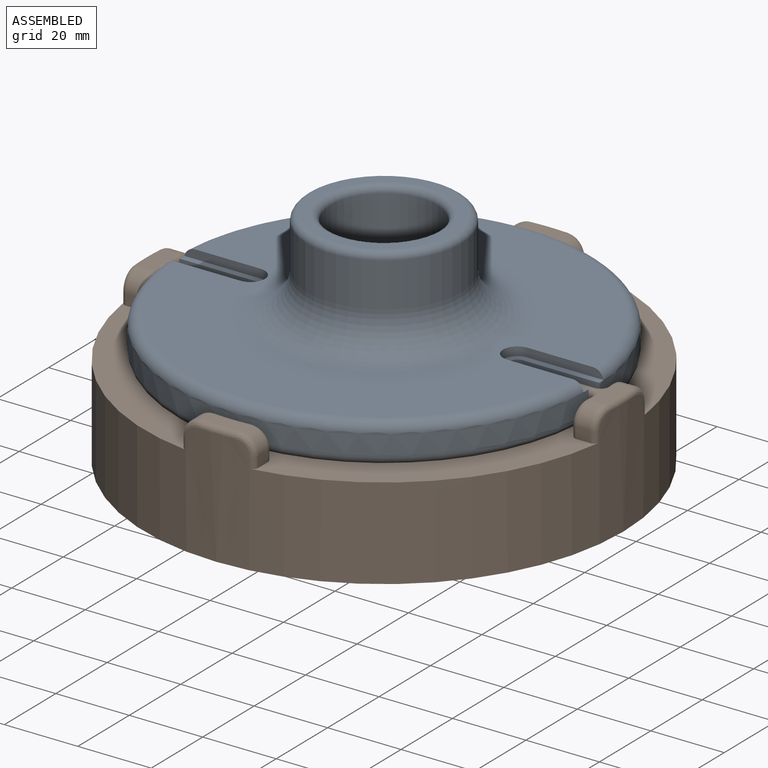
[diagram: assembled view]
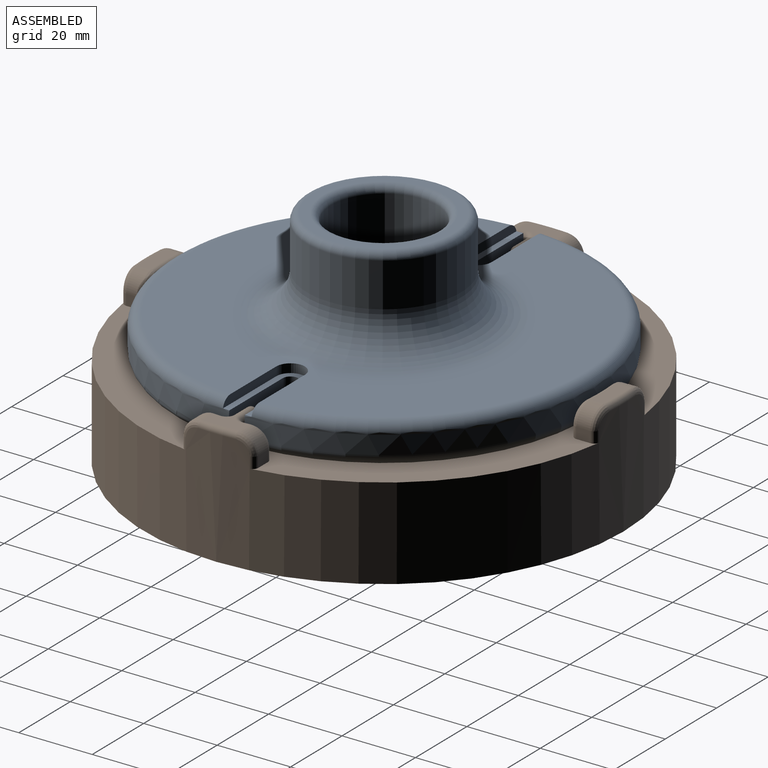
[diagram: assembled view, second angle]
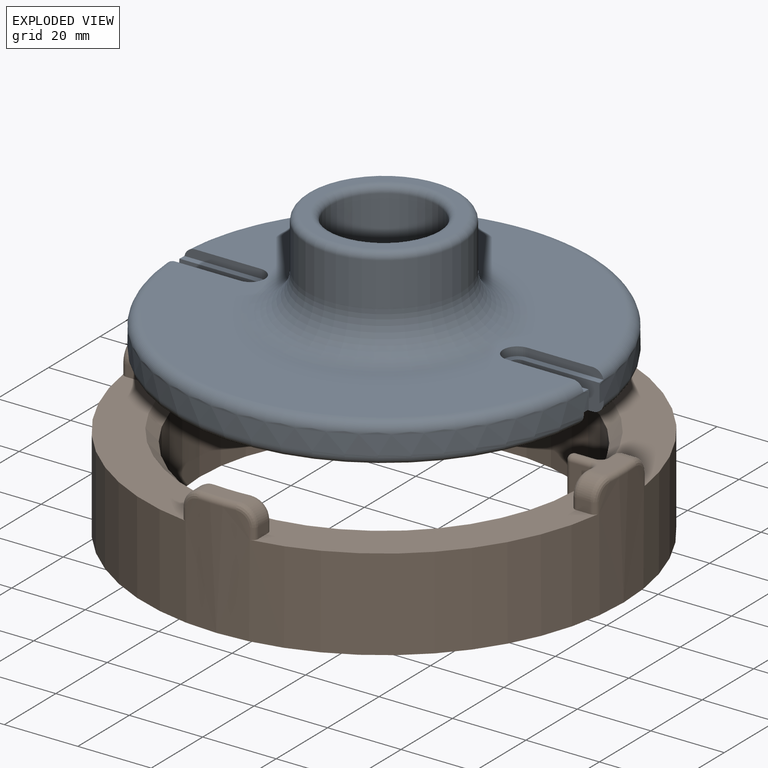
[diagram: exploded view]
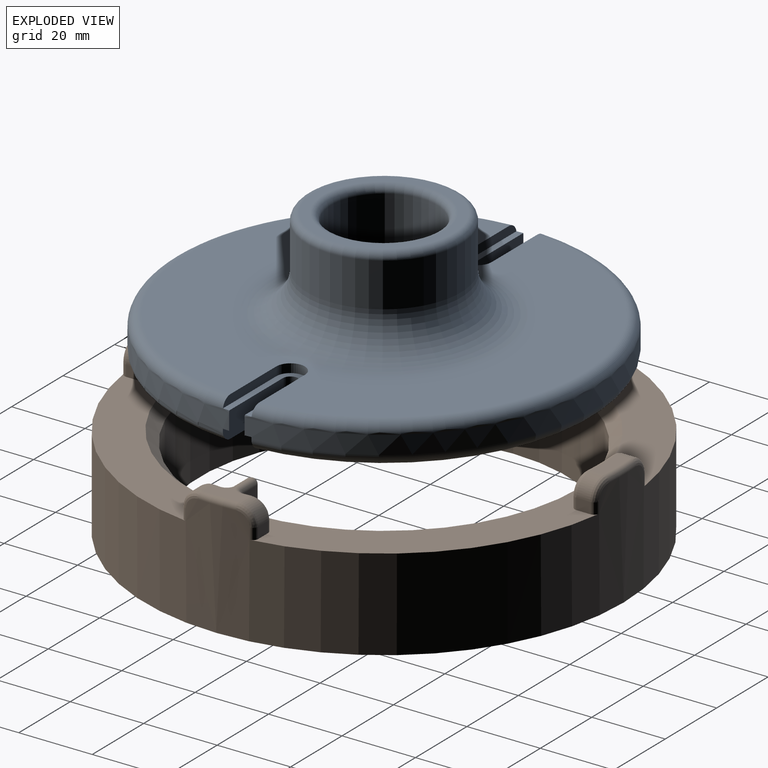
[diagram: exploded view, second angle]
ASSEMBLY  parts=2 mates=2
PART A: 42 faces, bbox 123.9x124x36.1 mm
  f0: cylinder r=44mm len=87.65mm, axis (0,0,-1), area 130.4mm2, adj f1,f11,f24,f36
  f1: plane 108.22x50.36mm, normal (0,0,-1), area 1502mm2, adj f0,f11,f22,f36
  f2: torus R=54.25mm, axis (0,0,1), area 794.4mm2, adj f10,f21,f25,f35
  f3: torus R=54.25mm, axis (0,0,-1), area 796.7mm2, adj f4,f7,f8,f15,f16,f18,f39,f41
  f4: cylinder r=57.25mm len=114.42mm, axis (0,0,1), area 876.1mm2, adj f3,f11,f12,f15,f18,f22,f36,f37
  f5: plane 20.77x2.47mm, normal (0,1,0), area 47.9mm2, adj f6,f8,f16,f17
  f6: cylinder r=3.89mm len=7.79mm, axis (0,0,-1), area 29.5mm2, adj f5,f7,f8,f16
  f7: plane 20.71x2.47mm, normal (0,-1,0), area 47.8mm2, adj f3,f6,f8,f16
  f8: plane 24.7x7.79mm, normal (0,0,1), area 91.4mm2, adj f3,f5,f6,f7,f13,f14,f15,f17
  f9: plane 19.91x1.79mm, normal (0,0,-1), area 35.5mm2, adj f10,f13,f21,f24
  f10: plane 19.92x3.7mm, normal (0,1,0), area 54.4mm2, adj f2,f9,f21,f23,f24,f25
  f11: plane 19.92x3.7mm, normal (0,-1,0), area 54.4mm2, adj f0,f1,f4,f12,f22,f24
  f12: plane 19.91x1.79mm, normal (0,0,-1), area 35.5mm2, adj f4,f11,f15,f24
  f13: plane 20.87x5mm, normal (0,1,0), area 104.1mm2, adj f8,f9,f14,f17,f21,f24
  f14: cylinder r=2.1mm len=4.56mm, axis (0,0,-1), area 26.5mm2, adj f8,f13,f15,f24
  f15: plane 20.87x5mm, normal (0,-1,0), area 104.1mm2, adj f3,f4,f8,f12,f14,f24
  f16: plane 108.5x108.22mm, normal (0,0,1), area 5703.2mm2, adj f3,f5,f6,f7,f17,f30,f38,f39
  f17: torus R=54.25mm, axis (0,0,-1), area 796.7mm2, adj f5,f8,f13,f16,f20,f21,f40,f41
  f18: plane 20.87x5mm, normal (0,-1,0), area 104.1mm2, adj f3,f4,f19,f24,f37,f41
  f19: cylinder r=2.1mm len=4.56mm, axis (0,0,-1), area 26.5mm2, adj f18,f20,f24,f41
  f20: plane 20.87x5mm, normal (0,1,0), area 104.1mm2, adj f17,f19,f21,f24,f34,f41
  f21: cylinder r=57.25mm len=114.42mm, axis (0,0,1), area 876.1mm2, adj f2,f9,f10,f13,f17,f20,f34,f35
  f22: torus R=54.25mm, axis (0,0,1), area 794.4mm2, adj f1,f4,f11,f36
  f23: cylinder r=44mm len=87.65mm, axis (0,0,-1), area 130.4mm2, adj f10,f24,f25,f35
  f24: cone r=34mm half-angle=68.2deg, axis (0,0,-1), area 2504.4mm2, adj f0,f9,f10,f11,f12,f13,f14,f15
  f25: plane 108.22x50.36mm, normal (0,0,-1), area 1502mm2, adj f2,f10,f23,f35
  f26: cylinder r=21mm len=42mm, axis (0,0,1), area 1583.4mm2, adj f30,f31
  f27: plane 38x38mm, normal (0,0,1), area 278.8mm2, adj f31,f32
  f28: cylinder r=14.5mm len=29mm, axis (0,0,1), area 2095.4mm2, adj f29,f32
  f29: plane 29x29mm, normal (0,0,1), area 660.5mm2, adj f28
  f30: torus R=32mm, axis (0,0,-1), area 2713.8mm2, adj f16,f26
  f31: torus R=19mm, axis (0,0,-1), area 400.2mm2, adj f26,f27
  f32: torus R=16.5mm, axis (0,0,-1), area 300.6mm2, adj f27,f28
  f33: plane 68x68mm, normal (0,0,-1), area 3631.7mm2, adj f24
  f34: plane 19.91x1.79mm, normal (0,0,-1), area 35.5mm2, adj f20,f21,f24,f35
  f35: plane 19.92x3.7mm, normal (0,1,0), area 54.4mm2, adj f2,f21,f23,f24,f25,f34
  f36: plane 19.92x3.7mm, normal (0,-1,0), area 54.4mm2, adj f0,f1,f4,f22,f24,f37
  f37: plane 19.91x1.79mm, normal (0,0,-1), area 35.5mm2, adj f4,f18,f24,f36
  f38: cylinder r=3.89mm len=7.79mm, axis (0,0,-1), area 29.5mm2, adj f16,f39,f40,f41
  f39: plane 20.77x2.47mm, normal (0,-1,0), area 47.9mm2, adj f3,f16,f38,f41
  f40: plane 20.71x2.47mm, normal (0,1,0), area 47.8mm2, adj f16,f17,f38,f41
  f41: plane 24.7x7.79mm, normal (0,0,1), area 91.4mm2, adj f3,f17,f18,f19,f20,f38,f39,f40
PART B: 93 faces, bbox 130.9x130.9x33 mm
  f0: plane 129.33x63.17mm, normal (0,0,1), area 1949.8mm2, adj f3,f5,f9,f11,f12,f13,f15,f16
  f1: cylinder r=58.5mm len=6.5mm, axis (0,0,-1), area 31.4mm2, adj f2,f27,f51,f52,f53
  f2: plane 129.33x63.17mm, normal (0,0,1), area 1949.8mm2, adj f1,f5,f7,f8,f17,f19,f20,f21
  f3: cylinder r=58.5mm len=6.5mm, axis (0,0,-1), area 31.4mm2, adj f0,f30,f48,f49,f50
  f4: cylinder r=50.25mm len=100.5mm, axis (0,0,1), area 6946.1mm2, adj f6,f91,f92
  f5: cylinder r=65.25mm len=130.5mm, axis (0,0,1), area 10681.5mm2, adj f0,f2,f6,f61,f62,f63,f64,f65
  f6: plane 130.5x130.5mm, normal (0,0,-1), area 5442.8mm2, adj f4,f5
  f7: cylinder r=58.5mm len=6.5mm, axis (0,0,-1), area 31.4mm2, adj f2,f31,f41,f42,f43
  f8: plane 3.79x3mm, normal (0,-1,0), area 11.4mm2, adj f2,f39,f41,f80
  f9: plane 3.79x3mm, normal (0,1,0), area 11.4mm2, adj f0,f40,f50,f76
  f10: plane 10x6.83mm, normal (0,0,1), area 41.7mm2, adj f39,f40,f43,f44,f47,f48,f78
  f11: cylinder r=58.5mm len=16.58mm, axis (0,0,-1), area 102.9mm2, adj f0,f66,f67,f68,f69,f70
  f12: plane 3.79x3mm, normal (1,0,0), area 11.4mm2, adj f0,f37,f70,f75
  f13: plane 3.79x3mm, normal (-1,0,0), area 11.4mm2, adj f0,f38,f66,f71
  f14: plane 10x3.96mm, normal (0,0,1), area 37.5mm2, adj f37,f38,f68,f73
  f15: cylinder r=58.5mm len=6.5mm, axis (0,0,-1), area 31.4mm2, adj f0,f28,f58,f59,f60
  f16: plane 3.79x3mm, normal (0,1,0), area 11.4mm2, adj f0,f35,f60,f65
  f17: plane 3.79x3mm, normal (0,-1,0), area 11.4mm2, adj f2,f36,f51,f61
  f18: plane 10x6.83mm, normal (0,0,1), area 41.7mm2, adj f35,f36,f53,f54,f57,f58,f63
  f19: cylinder r=58.5mm len=16.58mm, axis (0,0,-1), area 102.9mm2, adj f2,f86,f87,f88,f89,f90
  f20: plane 3.79x3mm, normal (-1,0,0), area 11.4mm2, adj f2,f33,f85,f90
  f21: plane 3.79x3mm, normal (1,0,0), area 11.4mm2, adj f2,f34,f81,f86
  f22: plane 10x3.96mm, normal (0,0,1), area 37.5mm2, adj f33,f34,f83,f88
  f23: plane 7.98x5.17mm, normal (0,1,0), area 34.7mm2, adj f0,f30,f32,f45,f91
  f24: plane 7.98x5.17mm, normal (0,-1,0), area 34.7mm2, adj f2,f31,f32,f45,f92
  f25: plane 7.98x5.17mm, normal (0,-1,0), area 34.7mm2, adj f2,f27,f29,f56,f92
  f26: plane 7.98x5.17mm, normal (0,1,0), area 34.7mm2, adj f0,f28,f29,f56,f91
  f27: cylinder r=1.5mm len=6.5mm, axis (0,0,-1), area 15.8mm2, adj f1,f2,f25,f54
  f28: cylinder r=1.5mm len=6.5mm, axis (0,0,-1), area 15.8mm2, adj f0,f15,f26,f57
  f29: cylinder r=1.5mm len=9.5mm, axis (0,0,1), area 42.1mm2, adj f25,f26,f55,f91,f92
  f30: cylinder r=1.5mm len=6.5mm, axis (0,0,-1), area 15.8mm2, adj f0,f3,f23,f47
  f31: cylinder r=1.5mm len=6.5mm, axis (0,0,-1), area 15.8mm2, adj f2,f7,f24,f44
  f32: cylinder r=1.5mm len=9.5mm, axis (0,0,1), area 42.1mm2, adj f23,f24,f46,f91,f92
  f33: cylinder r=5mm len=5mm, axis (0,1,0), area 29.7mm2, adj f20,f22,f84,f89
  f34: cylinder r=5mm len=5mm, axis (0,-1,0), area 29.7mm2, adj f21,f22,f82,f87
  f35: cylinder r=5mm len=5mm, axis (1,0,0), area 29.7mm2, adj f16,f18,f59,f64
  f36: cylinder r=5mm len=5mm, axis (-1,0,0), area 29.7mm2, adj f17,f18,f52,f62
  f37: cylinder r=5mm len=5mm, axis (0,-1,0), area 29.7mm2, adj f12,f14,f69,f74
  f38: cylinder r=5mm len=5mm, axis (0,1,0), area 29.7mm2, adj f13,f14,f67,f72
  f39: cylinder r=5mm len=5mm, axis (-1,0,0), area 29.7mm2, adj f8,f10,f42,f79
  f40: cylinder r=5mm len=5mm, axis (1,0,0), area 29.7mm2, adj f9,f10,f49,f77
  f41: cylinder r=1.5mm len=3mm, axis (0,0,-1), area 7.7mm2, adj f2,f7,f8,f42
  f42: bspline ~6.21x5.3mm, area 17.4mm2, adj f7,f39,f41,f43
  f43: torus R=60mm, axis (0,0,1), area 4.3mm2, adj f7,f10,f42,f44
  f44: torus R=3mm, axis (0,0,1), area 7.8mm2, adj f10,f31,f43,f45
  f45: cylinder r=1.5mm len=5.17mm, axis (-1,0,0), area 24.4mm2, adj f23,f24,f44,f46,f47
  f46: sphere r=1.5mm, area 7.1mm2, adj f32,f45
  f47: torus R=3mm, axis (0,0,1), area 7.8mm2, adj f10,f30,f45,f48
  f48: torus R=60mm, axis (0,0,1), area 4.3mm2, adj f3,f10,f47,f49
  f49: bspline ~6.21x6.17mm, area 17.4mm2, adj f3,f40,f48,f50
  f50: cylinder r=1.5mm len=3mm, axis (0,0,-1), area 7.7mm2, adj f0,f3,f9,f49
  f51: cylinder r=1.5mm len=3mm, axis (0,0,-1), area 7.7mm2, adj f1,f2,f17,f52
  f52: bspline ~6.21x6.17mm, area 17.4mm2, adj f1,f36,f51,f53
  f53: torus R=60mm, axis (0,0,1), area 4.3mm2, adj f1,f18,f52,f54
  f54: torus R=3mm, axis (0,0,1), area 7.8mm2, adj f18,f27,f53,f56
  f55: sphere r=1.5mm, area 7.1mm2, adj f29,f56
  f56: cylinder r=1.5mm len=5.17mm, axis (-1,0,0), area 24.4mm2, adj f25,f26,f54,f55,f57
  f57: torus R=3mm, axis (0,0,1), area 7.8mm2, adj f18,f28,f56,f58
  f58: torus R=60mm, axis (0,0,1), area 4.3mm2, adj f15,f18,f57,f59
  f59: bspline ~6.21x5.3mm, area 17.4mm2, adj f15,f35,f58,f60
  f60: cylinder r=1.5mm len=3mm, axis (0,0,-1), area 7.7mm2, adj f0,f15,f16,f59
  f61: cylinder r=1.5mm len=3mm, axis (0,0,1), area 6.5mm2, adj f2,f5,f17,f62
  f62: bspline ~6.11x5.29mm, area 15.7mm2, adj f5,f36,f61,f63
  f63: torus R=63.75mm, axis (0,0,1), area 23.9mm2, adj f5,f18,f62,f64
  f64: bspline ~6.11x6.11mm, area 15.7mm2, adj f5,f35,f63,f65
  f65: cylinder r=1.5mm len=3mm, axis (0,0,1), area 6.5mm2, adj f0,f5,f16,f64
  f66: cylinder r=1.5mm len=3mm, axis (0,0,-1), area 7.7mm2, adj f0,f11,f13,f67
  f67: bspline ~6.21x6.17mm, area 17.4mm2, adj f11,f38,f66,f68
  f68: torus R=60mm, axis (0,0,1), area 23.2mm2, adj f11,f14,f67,f69
  f69: bspline ~6.21x5.3mm, area 17.4mm2, adj f11,f37,f68,f70
  f70: cylinder r=1.5mm len=3mm, axis (0,0,-1), area 7.7mm2, adj f0,f11,f12,f69
  f71: cylinder r=1.5mm len=3mm, axis (0,0,1), area 6.5mm2, adj f0,f5,f13,f72
  f72: bspline ~6.11x5.29mm, area 15.7mm2, adj f5,f38,f71,f73
  f73: torus R=63.75mm, axis (0,0,1), area 23.9mm2, adj f5,f14,f72,f74
  f74: bspline ~6.11x6.11mm, area 15.7mm2, adj f5,f37,f73,f75
  f75: cylinder r=1.5mm len=3mm, axis (0,0,1), area 6.5mm2, adj f0,f5,f12,f74
  f76: cylinder r=1.5mm len=3mm, axis (0,0,1), area 6.5mm2, adj f0,f5,f9,f77
  f77: bspline ~6.11x5.29mm, area 15.7mm2, adj f5,f40,f76,f78
  f78: torus R=63.75mm, axis (0,0,1), area 23.9mm2, adj f5,f10,f77,f79
  f79: bspline ~6.11x6.11mm, area 15.7mm2, adj f5,f39,f78,f80
  f80: cylinder r=1.5mm len=3mm, axis (0,0,1), area 6.5mm2, adj f2,f5,f8,f79
  f81: cylinder r=1.5mm len=3mm, axis (0,0,1), area 6.5mm2, adj f2,f5,f21,f82
  f82: bspline ~6.11x5.29mm, area 15.7mm2, adj f5,f34,f81,f83
  f83: torus R=63.75mm, axis (0,0,1), area 23.9mm2, adj f5,f22,f82,f84
  f84: bspline ~6.11x6.11mm, area 15.7mm2, adj f5,f33,f83,f85
  f85: cylinder r=1.5mm len=3mm, axis (0,0,1), area 6.5mm2, adj f2,f5,f20,f84
  f86: cylinder r=1.5mm len=3mm, axis (0,0,-1), area 7.7mm2, adj f2,f19,f21,f87
  f87: bspline ~6.21x6.17mm, area 17.4mm2, adj f19,f34,f86,f88
  f88: torus R=60mm, axis (0,0,1), area 23.2mm2, adj f19,f22,f87,f89
  f89: bspline ~6.21x5.3mm, area 17.4mm2, adj f19,f33,f88,f90
  f90: cylinder r=1.5mm len=3mm, axis (0,0,-1), area 7.7mm2, adj f2,f19,f20,f89
  f91: cone r=50.25mm half-angle=45deg, axis (0,0,1), area 678.4mm2, adj f0,f4,f23,f26,f29,f32
  f92: cone r=50.25mm half-angle=45deg, axis (0,0,1), area 678.4mm2, adj f2,f4,f24,f25,f29,f32
PLACE A t=(-18.29,-3.38,5.27)mm fixed
PLACE B rot(axis=(0,0,1),180deg) t=(-18.29,-3.38,5.27)mm
MATE planar B.f2 <-> A.f25  axis (0,0,1) through (-18.29,35.42,5.27)mm
MATE cylindrical A.f2 <-> B.f5  axis (0,0,1) through (-18.29,-3.38,10.77)mm
